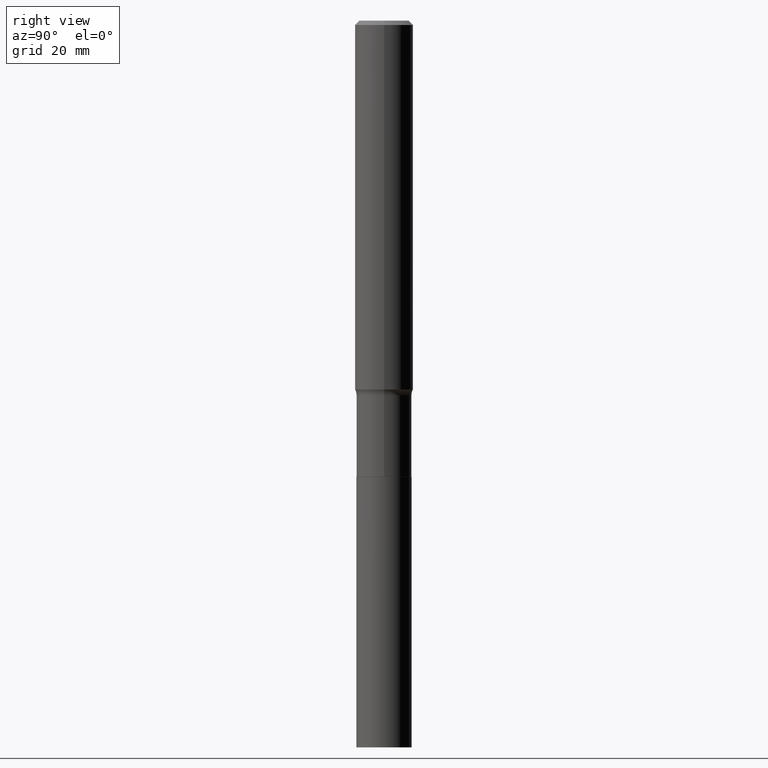
[diagram: clean part render]
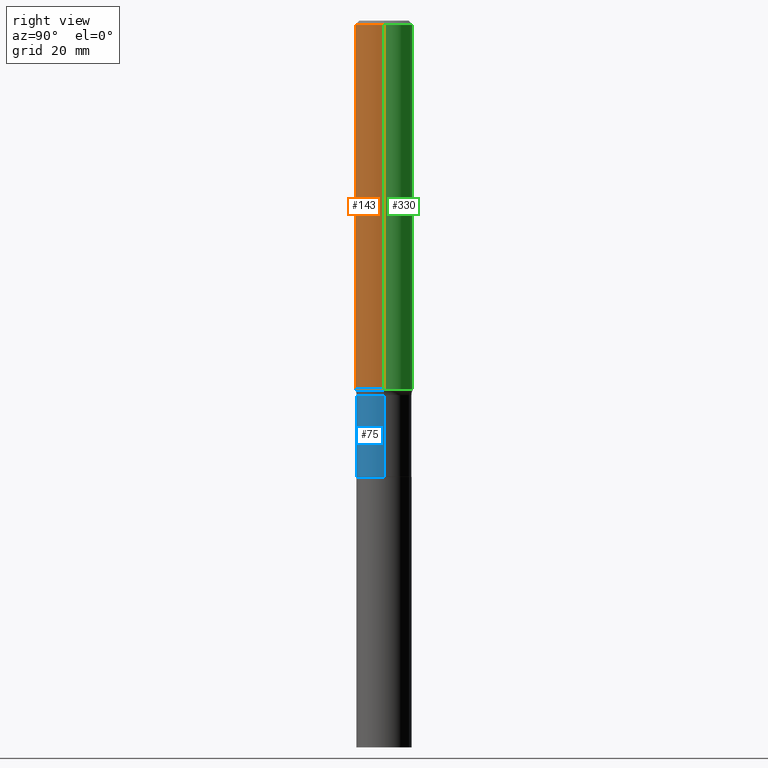
[diagram: same view with three faces highlighted in distinct colors, each labeled with its STEP entity id]
A machine part, right view with three faces highlighted in distinct colors.
Their STEP definitions:

[orange] entity #143 — the highlighted cylindrical surface (edge-blend (fillet) strip) has radius 5 mm, axis along (-0, 0, 1).
#14 = ORIENTED_EDGE ( 'NONE', *, *, #350, .T. ) ;
#16 = AXIS2_PLACEMENT_3D ( 'NONE', #442, #305, #83 ) ;
#40 = DIRECTION ( 'NONE',  ( 1.000000000000000000, -6.982962677686266711E-15, 0.000000000000000000 ) ) ;
#69 = CIRCLE ( 'NONE', #16, 0.1968500000000000250 ) ;
#83 = DIRECTION ( 'NONE',  ( 1.000000000000000000, -6.982962677686265922E-15, 0.000000000000000000 ) ) ;
#105 = DIRECTION ( 'NONE',  ( -2.445468806185136597E-29, 3.491481338843145583E-15, 1.000000000000000000 ) ) ;
#119 = DIRECTION ( 'NONE',  ( -2.445468806185136877E-29, 3.491481338843145188E-15, 1.000000000000000000 ) ) ;
#142 = DIRECTION ( 'NONE',  ( -2.445468806185136597E-29, 3.491481338843145583E-15, 1.000000000000000000 ) ) ;
#143 = ADVANCED_FACE ( 'NONE', ( #146 ), #149, .T. ) ;
#146 = FACE_OUTER_BOUND ( 'NONE', #282, .T. ) ;
#149 = CYLINDRICAL_SURFACE ( 'NONE', #468, 0.1968500000000001915 ) ;
#157 = CARTESIAN_POINT ( 'NONE',  ( 0.1968500000000002748, -1.009541761308094903E-14, -2.497742523483722721 ) ) ;
#167 = AXIS2_PLACEMENT_3D ( 'NONE', #293, #105, #40 ) ;
#168 = VERTEX_POINT ( 'NONE', #429 ) ;
#188 = EDGE_CURVE ( 'NONE', #342, #371, #327, .T. ) ;
#224 = CARTESIAN_POINT ( 'NONE',  ( -0.1968500000000001915, 1.398703375343758577E-15, -9.682923725166790684E-30 ) ) ;
#282 = EDGE_LOOP ( 'NONE', ( #438, #456, #14, #441 ) ) ;
#293 = CARTESIAN_POINT ( 'NONE',  ( 6.108151427061589913E-29, -8.720821409978404261E-15, -2.497742523483722721 ) ) ;
#301 = VERTEX_POINT ( 'NONE', #368 ) ;
#302 = CARTESIAN_POINT ( 'NONE',  ( 0.1968500000000001915, -1.374596203102542989E-15, 9.598753983154309266E-30 ) ) ;
#305 = DIRECTION ( 'NONE',  ( -2.445468806185136597E-29, 3.491481338843145583E-15, 1.000000000000000000 ) ) ;
#319 = EDGE_CURVE ( 'NONE', #168, #301, #69, .T. ) ;
#327 = CIRCLE ( 'NONE', #167, 0.1968500000000003303 ) ;
#334 = LINE ( 'NONE', #302, #445 ) ;
#342 = VERTEX_POINT ( 'NONE', #367 ) ;
#350 = EDGE_CURVE ( 'NONE', #371, #301, #334, .T. ) ;
#367 = CARTESIAN_POINT ( 'NONE',  ( -0.1968500000000002748, -7.322118034634645685E-15, -2.497742523483722721 ) ) ;
#368 = CARTESIAN_POINT ( 'NONE',  ( 0.1968500000000000250, -1.477690918335233294E-15, -0.02952750000000018207 ) ) ;
#371 = VERTEX_POINT ( 'NONE', #157 ) ;
#395 = VECTOR ( 'NONE', #399, 39.37007874015748143 ) ;
#399 = DIRECTION ( 'NONE',  ( -2.445468806185136877E-29, 3.491481338843145188E-15, 1.000000000000000000 ) ) ;
#402 = LINE ( 'NONE', #224, #395 ) ;
#426 = EDGE_CURVE ( 'NONE', #342, #168, #402, .T. ) ;
#429 = CARTESIAN_POINT ( 'NONE',  ( -0.1968500000000000250, -3.013254687261788214E-15, -0.02952750000000018207 ) ) ;
#432 = DIRECTION ( 'NONE',  ( 1.000000000000000000, -6.982962677686266711E-15, 4.876176775795935793E-29 ) ) ;
#438 = ORIENTED_EDGE ( 'NONE', *, *, #426, .F. ) ;
#441 = ORIENTED_EDGE ( 'NONE', *, *, #319, .F. ) ;
#442 = CARTESIAN_POINT ( 'NONE',  ( 7.220858017463206858E-31, -1.030947152326916240E-16, -0.02952750000000018207 ) ) ;
#445 = VECTOR ( 'NONE', #119, 39.37007874015748143 ) ;
#456 = ORIENTED_EDGE ( 'NONE', *, *, #188, .T. ) ;
#466 = CARTESIAN_POINT ( 'NONE',  ( 0.000000000000000000, 0.000000000000000000, 0.000000000000000000 ) ) ;
#468 = AXIS2_PLACEMENT_3D ( 'NONE', #466, #142, #432 ) ;

[blue] entity #75 — the highlighted cylindrical surface (edge-blend (fillet) strip) has radius 4.7498 mm, axis along (-0, 0, 1).
#35 = DIRECTION ( 'NONE',  ( -2.445468806185136877E-29, 3.491481338843145188E-15, 1.000000000000000000 ) ) ;
#41 = EDGE_CURVE ( 'NONE', #309, #390, #379, .T. ) ;
#65 = CARTESIAN_POINT ( 'NONE',  ( 7.556009517350832766E-29, -1.078797904075754944E-14, -3.089799999999999436 ) ) ;
#75 = ADVANCED_FACE ( 'NONE', ( #356 ), #161, .T. ) ;
#79 = CARTESIAN_POINT ( 'NONE',  ( -0.1869999999999999440, -8.492822090294381036E-15, -2.536200000000000010 ) ) ;
#98 = VECTOR ( 'NONE', #265, 39.37007874015748143 ) ;
#103 = DIRECTION ( 'NONE',  ( -2.445468806185136597E-29, 3.491481338843145583E-15, 1.000000000000000000 ) ) ;
#112 = CARTESIAN_POINT ( 'NONE',  ( 0.1869999999999999718, -1.305814020727331607E-15, 9.118450570738398307E-30 ) ) ;
#116 = CARTESIAN_POINT ( 'NONE',  ( -0.1869999999999999996, -8.492822090294381036E-15, -3.089799999999999436 ) ) ;
#125 = CARTESIAN_POINT ( 'NONE',  ( 0.1869999999999999996, -1.209379306148488144E-14, -3.089799999999999436 ) ) ;
#129 = CARTESIAN_POINT ( 'NONE',  ( 0.000000000000000000, 0.000000000000000000, 0.000000000000000000 ) ) ;
#135 = EDGE_CURVE ( 'NONE', #376, #448, #189, .T. ) ;
#136 = ORIENTED_EDGE ( 'NONE', *, *, #41, .T. ) ;
#144 = LINE ( 'NONE', #112, #229 ) ;
#147 = EDGE_CURVE ( 'NONE', #390, #448, #144, .T. ) ;
#161 = CYLINDRICAL_SURFACE ( 'NONE', #247, 0.1869999999999999718 ) ;
#189 = CIRCLE ( 'NONE', #206, 0.1869999999999999440 ) ;
#204 = DIRECTION ( 'NONE',  ( -2.445468806185136597E-29, 3.491481338843145583E-15, 1.000000000000000000 ) ) ;
#206 = AXIS2_PLACEMENT_3D ( 'NONE', #326, #103, #362 ) ;
#210 = EDGE_LOOP ( 'NONE', ( #313, #136, #213, #266 ) ) ;
#213 = ORIENTED_EDGE ( 'NONE', *, *, #147, .T. ) ;
#229 = VECTOR ( 'NONE', #35, 39.37007874015748143 ) ;
#230 = LINE ( 'NONE', #298, #98 ) ;
#237 = AXIS2_PLACEMENT_3D ( 'NONE', #65, #204, #353 ) ;
#247 = AXIS2_PLACEMENT_3D ( 'NONE', #129, #278, #416 ) ;
#265 = DIRECTION ( 'NONE',  ( -2.445468806185136877E-29, 3.491481338843145188E-15, 1.000000000000000000 ) ) ;
#266 = ORIENTED_EDGE ( 'NONE', *, *, #135, .F. ) ;
#278 = DIRECTION ( 'NONE',  ( -2.445468806185136597E-29, 3.491481338843145583E-15, 1.000000000000000000 ) ) ;
#298 = CARTESIAN_POINT ( 'NONE',  ( -0.1869999999999999718, 1.328714915871387147E-15, -9.198408618776671699E-30 ) ) ;
#309 = VERTEX_POINT ( 'NONE', #116 ) ;
#313 = ORIENTED_EDGE ( 'NONE', *, *, #345, .F. ) ;
#326 = CARTESIAN_POINT ( 'NONE',  ( 6.202197986246743952E-29, -8.855094971573986534E-15, -2.536200000000000010 ) ) ;
#344 = CARTESIAN_POINT ( 'NONE',  ( 0.1869999999999999440, -1.016090899230131854E-14, -2.536200000000000010 ) ) ;
#345 = EDGE_CURVE ( 'NONE', #309, #376, #230, .T. ) ;
#353 = DIRECTION ( 'NONE',  ( 1.000000000000000000, -6.982962677686265133E-15, 0.000000000000000000 ) ) ;
#356 = FACE_OUTER_BOUND ( 'NONE', #210, .T. ) ;
#362 = DIRECTION ( 'NONE',  ( 1.000000000000000000, -6.982962677686267499E-15, 0.000000000000000000 ) ) ;
#376 = VERTEX_POINT ( 'NONE', #79 ) ;
#379 = CIRCLE ( 'NONE', #237, 0.1869999999999999996 ) ;
#390 = VERTEX_POINT ( 'NONE', #125 ) ;
#416 = DIRECTION ( 'NONE',  ( 1.000000000000000000, -6.982962677686266711E-15, 4.876176775795935793E-29 ) ) ;
#448 = VERTEX_POINT ( 'NONE', #344 ) ;

[green] entity #330 — the highlighted cylindrical surface (edge-blend (fillet) strip) has radius 5 mm, axis along (-0, 0, 1).
#13 = EDGE_CURVE ( 'NONE', #301, #168, #53, .T. ) ;
#26 = ORIENTED_EDGE ( 'NONE', *, *, #13, .F. ) ;
#43 = DIRECTION ( 'NONE',  ( 1.000000000000000000, -6.982962677686266711E-15, 4.876176775795935793E-29 ) ) ;
#53 = CIRCLE ( 'NONE', #113, 0.1968500000000000250 ) ;
#99 = CARTESIAN_POINT ( 'NONE',  ( 7.220858017463206858E-31, -1.030947152326916240E-16, -0.02952750000000018207 ) ) ;
#113 = AXIS2_PLACEMENT_3D ( 'NONE', #99, #451, #383 ) ;
#119 = DIRECTION ( 'NONE',  ( -2.445468806185136877E-29, 3.491481338843145188E-15, 1.000000000000000000 ) ) ;
#140 = CIRCLE ( 'NONE', #151, 0.1968500000000003303 ) ;
#151 = AXIS2_PLACEMENT_3D ( 'NONE', #292, #256, #396 ) ;
#157 = CARTESIAN_POINT ( 'NONE',  ( 0.1968500000000002748, -1.009541761308094903E-14, -2.497742523483722721 ) ) ;
#168 = VERTEX_POINT ( 'NONE', #429 ) ;
#185 = FACE_OUTER_BOUND ( 'NONE', #193, .T. ) ;
#187 = ORIENTED_EDGE ( 'NONE', *, *, #350, .F. ) ;
#193 = EDGE_LOOP ( 'NONE', ( #306, #276, #26, #187 ) ) ;
#197 = EDGE_CURVE ( 'NONE', #371, #342, #140, .T. ) ;
#216 = AXIS2_PLACEMENT_3D ( 'NONE', #410, #437, #43 ) ;
#224 = CARTESIAN_POINT ( 'NONE',  ( -0.1968500000000001915, 1.398703375343758577E-15, -9.682923725166790684E-30 ) ) ;
#256 = DIRECTION ( 'NONE',  ( -2.445468806185136597E-29, 3.491481338843145583E-15, 1.000000000000000000 ) ) ;
#276 = ORIENTED_EDGE ( 'NONE', *, *, #426, .T. ) ;
#292 = CARTESIAN_POINT ( 'NONE',  ( 6.108151427061589913E-29, -8.720821409978404261E-15, -2.497742523483722721 ) ) ;
#301 = VERTEX_POINT ( 'NONE', #368 ) ;
#302 = CARTESIAN_POINT ( 'NONE',  ( 0.1968500000000001915, -1.374596203102542989E-15, 9.598753983154309266E-30 ) ) ;
#306 = ORIENTED_EDGE ( 'NONE', *, *, #197, .T. ) ;
#330 = ADVANCED_FACE ( 'NONE', ( #185 ), #440, .T. ) ;
#334 = LINE ( 'NONE', #302, #445 ) ;
#342 = VERTEX_POINT ( 'NONE', #367 ) ;
#350 = EDGE_CURVE ( 'NONE', #371, #301, #334, .T. ) ;
#367 = CARTESIAN_POINT ( 'NONE',  ( -0.1968500000000002748, -7.322118034634645685E-15, -2.497742523483722721 ) ) ;
#368 = CARTESIAN_POINT ( 'NONE',  ( 0.1968500000000000250, -1.477690918335233294E-15, -0.02952750000000018207 ) ) ;
#371 = VERTEX_POINT ( 'NONE', #157 ) ;
#383 = DIRECTION ( 'NONE',  ( 1.000000000000000000, -6.982962677686265922E-15, 0.000000000000000000 ) ) ;
#395 = VECTOR ( 'NONE', #399, 39.37007874015748143 ) ;
#396 = DIRECTION ( 'NONE',  ( 1.000000000000000000, -6.982962677686266711E-15, 0.000000000000000000 ) ) ;
#399 = DIRECTION ( 'NONE',  ( -2.445468806185136877E-29, 3.491481338843145188E-15, 1.000000000000000000 ) ) ;
#402 = LINE ( 'NONE', #224, #395 ) ;
#410 = CARTESIAN_POINT ( 'NONE',  ( 0.000000000000000000, 0.000000000000000000, 0.000000000000000000 ) ) ;
#426 = EDGE_CURVE ( 'NONE', #342, #168, #402, .T. ) ;
#429 = CARTESIAN_POINT ( 'NONE',  ( -0.1968500000000000250, -3.013254687261788214E-15, -0.02952750000000018207 ) ) ;
#437 = DIRECTION ( 'NONE',  ( -2.445468806185136597E-29, 3.491481338843145583E-15, 1.000000000000000000 ) ) ;
#440 = CYLINDRICAL_SURFACE ( 'NONE', #216, 0.1968500000000001915 ) ;
#445 = VECTOR ( 'NONE', #119, 39.37007874015748143 ) ;
#451 = DIRECTION ( 'NONE',  ( -2.445468806185136597E-29, 3.491481338843145583E-15, 1.000000000000000000 ) ) ;